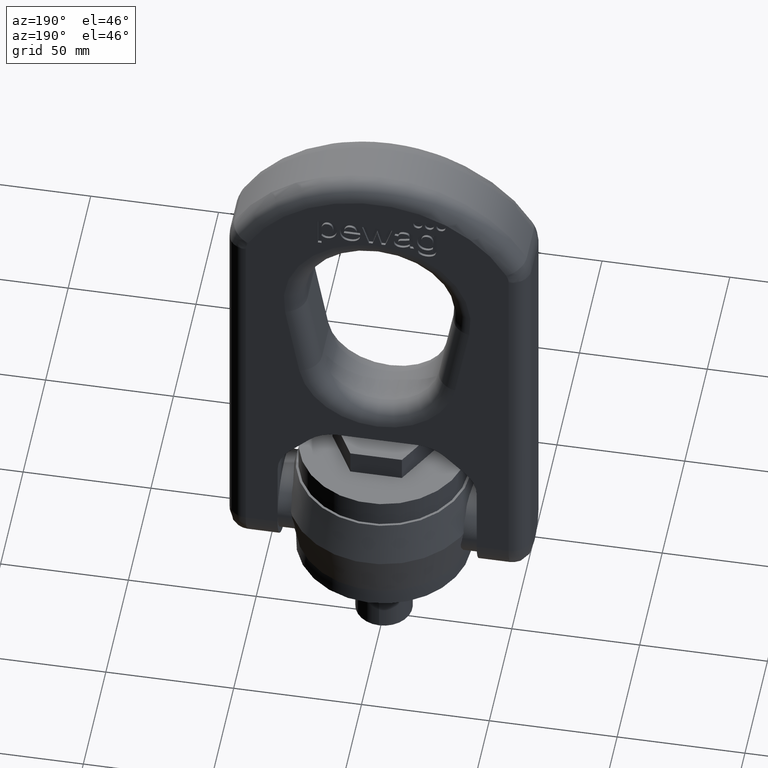
[diagram: clean part render]
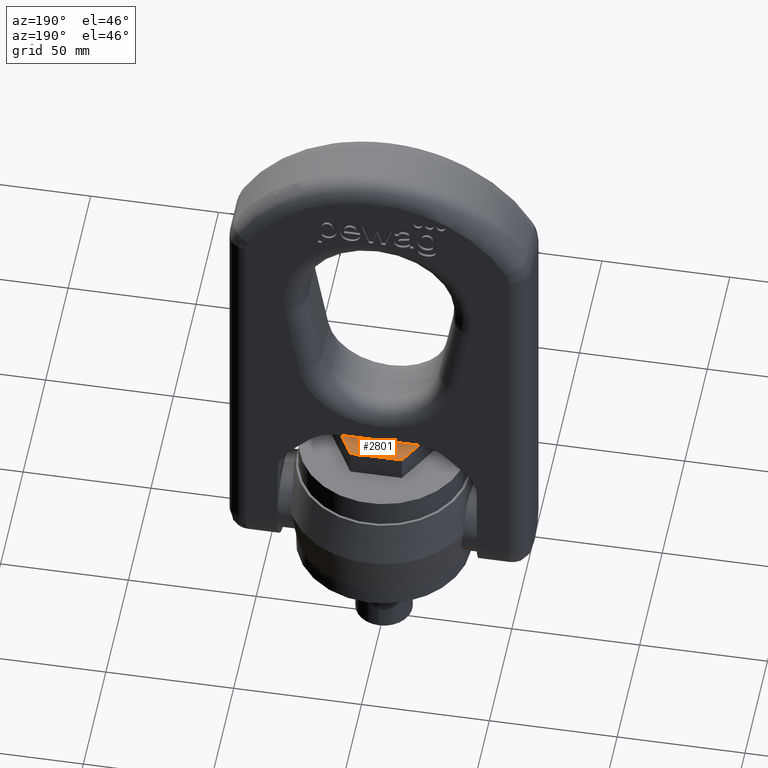
[diagram: same view with one face highlighted and labeled with its STEP entity id]
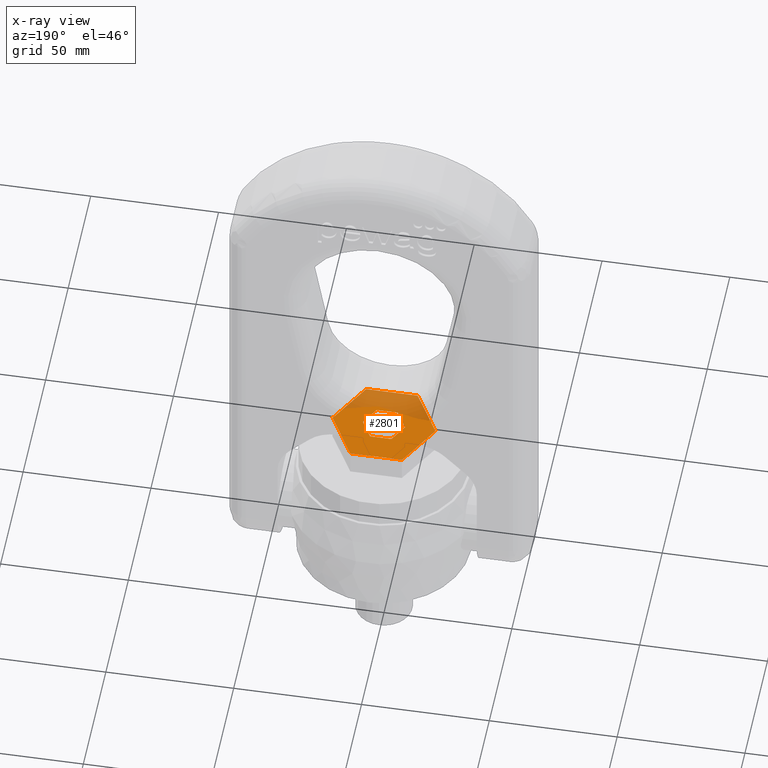
[diagram: x-ray of the same camera — body ghosted, the highlighted face saturated]
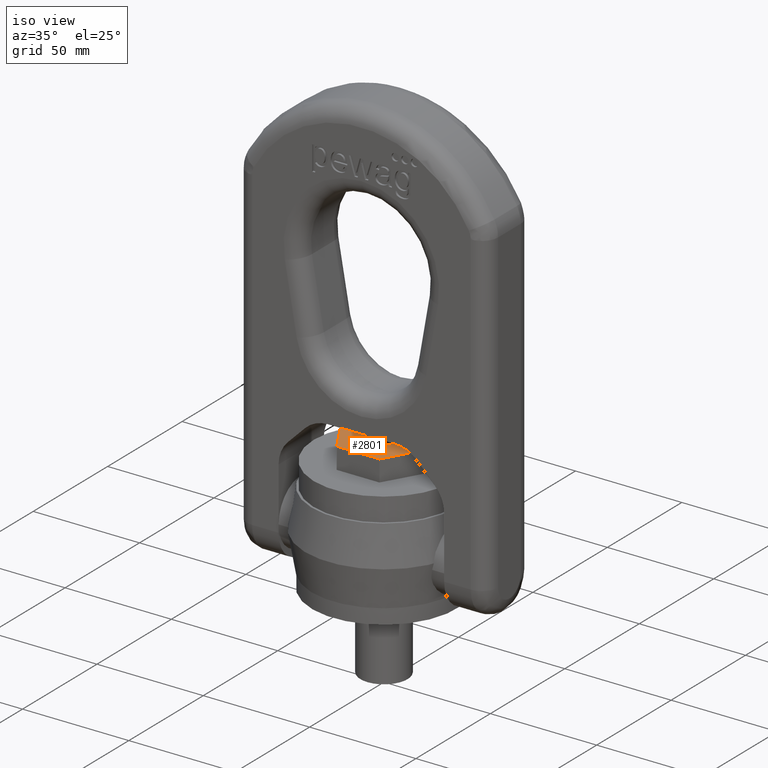
[diagram: same view with one face highlighted and labeled with its STEP entity id]
A machine part, auxiliary view. The second image highlights one B-rep face of the part: STEP entity #2801.
The next image is the same camera in x-ray: the body ghosted, the highlighted face saturated — about 31% of this face is hidden behind the body in this view.
A second angle (iso view) of the same face is appended — the face is thin or edge-on in the first view.
In plain terms, the highlighted planar face has unit normal (0, 0, 1).
Its self-contained STEP definition (entity closure, byte-faithful):
#1736=LINE('',#6976,#2044);
#1739=LINE('',#6982,#2047);
#1741=LINE('',#6986,#2049);
#1743=LINE('',#6990,#2051);
#1745=LINE('',#6994,#2053);
#1746=LINE('',#6996,#2054);
#1747=LINE('',#6998,#2055);
#1748=LINE('',#7001,#2056);
#1749=LINE('',#7003,#2057);
#1750=LINE('',#7005,#2058);
#1751=LINE('',#7007,#2059);
#1752=LINE('',#7009,#2060);
#2044=VECTOR('',#6107,1.);
#2047=VECTOR('',#6112,1.);
#2049=VECTOR('',#6116,1.);
#2051=VECTOR('',#6120,1.);
#2053=VECTOR('',#6124,1.);
#2054=VECTOR('',#6127,1.);
#2055=VECTOR('',#6130,1.);
#2056=VECTOR('',#6131,1.);
#2057=VECTOR('',#6132,1.);
#2058=VECTOR('',#6133,1.);
#2059=VECTOR('',#6134,1.);
#2060=VECTOR('',#6135,1.);
#2675=PLANE('',#5851);
#2801=ADVANCED_FACE('',(#3085,#3086),#2675,.T.);
#3085=FACE_BOUND('',#3160,.T.);
#3086=FACE_BOUND('',#3161,.T.);
#3160=EDGE_LOOP('',(#3479,#3480,#3481,#3482,#3483,#3484));
#3161=EDGE_LOOP('',(#3485,#3486,#3487,#3488,#3489,#3490));
#3479=ORIENTED_EDGE('',*,*,#5143,.F.);
#3480=ORIENTED_EDGE('',*,*,#5144,.F.);
#3481=ORIENTED_EDGE('',*,*,#5145,.F.);
#3482=ORIENTED_EDGE('',*,*,#5146,.F.);
#3483=ORIENTED_EDGE('',*,*,#5147,.F.);
#3484=ORIENTED_EDGE('',*,*,#5148,.F.);
#3485=ORIENTED_EDGE('',*,*,#5132,.T.);
#3486=ORIENTED_EDGE('',*,*,#5135,.T.);
#3487=ORIENTED_EDGE('',*,*,#5137,.T.);
#3488=ORIENTED_EDGE('',*,*,#5139,.T.);
#3489=ORIENTED_EDGE('',*,*,#5141,.T.);
#3490=ORIENTED_EDGE('',*,*,#5142,.T.);
#4711=VERTEX_POINT('',#6975);
#4712=VERTEX_POINT('',#6977);
#4713=VERTEX_POINT('',#6981);
#4714=VERTEX_POINT('',#6985);
#4715=VERTEX_POINT('',#6989);
#4716=VERTEX_POINT('',#6993);
#4717=VERTEX_POINT('',#6999);
#4718=VERTEX_POINT('',#7000);
#4719=VERTEX_POINT('',#7002);
#4720=VERTEX_POINT('',#7004);
#4721=VERTEX_POINT('',#7006);
#4722=VERTEX_POINT('',#7008);
#5132=EDGE_CURVE('',#4712,#4711,#1736,.T.);
#5135=EDGE_CURVE('',#4711,#4713,#1739,.T.);
#5137=EDGE_CURVE('',#4713,#4714,#1741,.T.);
#5139=EDGE_CURVE('',#4714,#4715,#1743,.T.);
#5141=EDGE_CURVE('',#4715,#4716,#1745,.T.);
#5142=EDGE_CURVE('',#4716,#4712,#1746,.T.);
#5143=EDGE_CURVE('',#4717,#4718,#1747,.T.);
#5144=EDGE_CURVE('',#4719,#4717,#1748,.T.);
#5145=EDGE_CURVE('',#4720,#4719,#1749,.T.);
#5146=EDGE_CURVE('',#4721,#4720,#1750,.T.);
#5147=EDGE_CURVE('',#4722,#4721,#1751,.T.);
#5148=EDGE_CURVE('',#4718,#4722,#1752,.T.);
#5851=AXIS2_PLACEMENT_3D('',#7010,#6136,#6137);
#6107=DIRECTION('',(0.5,-0.866025403784439,0.));
#6112=DIRECTION('',(1.,0.,0.));
#6116=DIRECTION('',(0.5,0.866025403784439,0.));
#6120=DIRECTION('',(-0.5,0.866025403784439,0.));
#6124=DIRECTION('',(-1.,0.,0.));
#6127=DIRECTION('',(-0.5,-0.866025403784439,0.));
#6130=DIRECTION('',(0.5,-0.866025403784439,0.));
#6131=DIRECTION('',(-0.5,-0.866025403784439,0.));
#6132=DIRECTION('',(-1.,0.,0.));
#6133=DIRECTION('',(-0.5,0.866025403784439,0.));
#6134=DIRECTION('',(0.5,0.866025403784439,0.));
#6135=DIRECTION('',(1.,0.,0.));
#6136=DIRECTION('',(0.,0.,1.));
#6137=DIRECTION('',(1.,0.,0.));
#6975=CARTESIAN_POINT('',(-10.074762197359,-17.45,64.));
#6976=CARTESIAN_POINT('',(-20.1495243947179,0.,64.));
#6977=CARTESIAN_POINT('',(-20.1495243947179,0.,64.));
#6981=CARTESIAN_POINT('',(10.074762197359,-17.45,64.));
#6982=CARTESIAN_POINT('',(-10.074762197359,-17.45,64.));
#6985=CARTESIAN_POINT('',(20.1495243947179,3.46944695195361E-15,64.));
#6986=CARTESIAN_POINT('',(10.074762197359,-17.45,64.));
#6989=CARTESIAN_POINT('',(10.074762197359,17.45,64.));
#6990=CARTESIAN_POINT('',(20.1495243947179,0.,64.));
#6993=CARTESIAN_POINT('',(-10.074762197359,17.45,64.));
#6994=CARTESIAN_POINT('',(10.074762197359,17.45,64.));
#6996=CARTESIAN_POINT('',(-10.074762197359,17.45,64.));
#6998=CARTESIAN_POINT('',(-8.25610884941164,0.,64.));
#6999=CARTESIAN_POINT('',(-8.25610884941164,0.,64.));
#7000=CARTESIAN_POINT('',(-4.12805442470582,-7.15,64.));
#7001=CARTESIAN_POINT('',(-4.12805442470582,7.15,64.));
#7002=CARTESIAN_POINT('',(-4.12805442470582,7.15,64.));
#7003=CARTESIAN_POINT('',(4.12805442470582,7.15,64.));
#7004=CARTESIAN_POINT('',(4.12805442470582,7.15,64.));
#7005=CARTESIAN_POINT('',(8.25610884941164,0.,64.));
#7006=CARTESIAN_POINT('',(8.25610884941164,1.73472347597681E-15,64.));
#7007=CARTESIAN_POINT('',(4.12805442470582,-7.15,64.));
#7008=CARTESIAN_POINT('',(4.12805442470582,-7.15,64.));
#7009=CARTESIAN_POINT('',(-4.12805442470582,-7.15,64.));
#7010=CARTESIAN_POINT('',(0.,0.,64.));